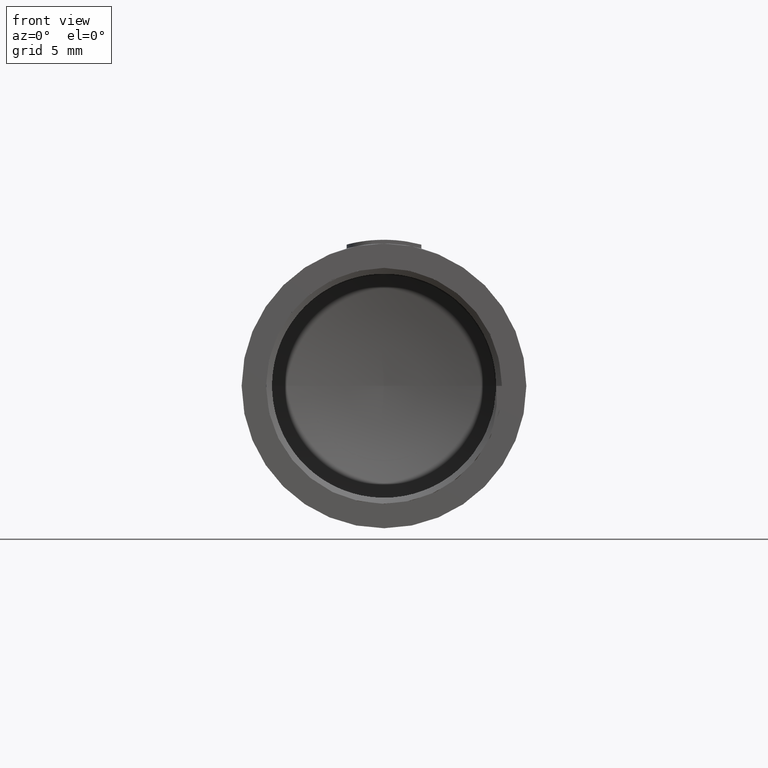
[diagram: clean part render]
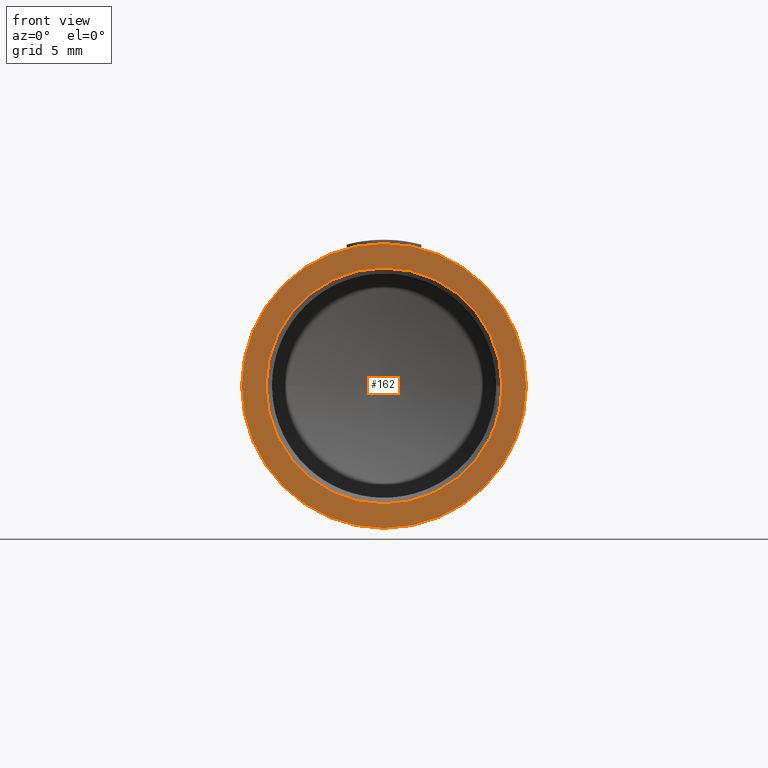
[diagram: same view with one face highlighted and labeled with its STEP entity id]
A machine part, front view. The second image highlights one B-rep face of the part: STEP entity #162.
In plain terms, the highlighted planar face has unit normal (0, 1, 0).
Its self-contained STEP definition (entity closure, byte-faithful):
#162=ADVANCED_FACE('',(#330,#331),#332,.F.);
#330=FACE_BOUND('',#1855,.T.);
#331=FACE_OUTER_BOUND('',#1856,.T.);
#332=PLANE('',#1857);
#1855=EDGE_LOOP('',(#2503,#2504));
#1856=EDGE_LOOP('',(#2505,#2506));
#1857=AXIS2_PLACEMENT_3D('',#2507,#2508,#2509);
#2503=ORIENTED_EDGE('',*,*,#2753,.F.);
#2504=ORIENTED_EDGE('',*,*,#2559,.F.);
#2505=ORIENTED_EDGE('',*,*,#2690,.T.);
#2506=ORIENTED_EDGE('',*,*,#2565,.T.);
#2507=CARTESIAN_POINT('',(-4.65365783675994E-16,-1.7347234759768E-15,-7.6));
#2508=DIRECTION('',(0.0,1.0,0.0));
#2509=DIRECTION('',(-1.0,0.0,6.12323399573677E-17));
#2559=EDGE_CURVE('',#2783,#2780,#2785,.T.);
#2565=EDGE_CURVE('',#2796,#2794,#2797,.T.);
#2690=EDGE_CURVE('',#2794,#2796,#3003,.T.);
#2753=EDGE_CURVE('',#2780,#2783,#3106,.T.);
#2780=VERTEX_POINT('',#3825);
#2783=VERTEX_POINT('',#3829);
#2785=CIRCLE('',#3832,6.3);
#2794=VERTEX_POINT('',#3841);
#2796=VERTEX_POINT('',#3844);
#2797=CIRCLE('',#3845,7.6);
#3003=CIRCLE('',#4113,7.6);
#3106=CIRCLE('',#4263,6.3);
#3825=CARTESIAN_POINT('',(6.3,0.0,-3.85763741731417E-16));
#3829=CARTESIAN_POINT('',(-6.3,0.0,-3.85763741731416E-16));
#3832=AXIS2_PLACEMENT_3D('',#4282,#4283,#4284);
#3841=CARTESIAN_POINT('',(7.6,-3.46944695195361E-15,-4.65365783675995E-16));
#3844=CARTESIAN_POINT('',(-7.6,-3.5527136788005E-15,-4.65365783675994E-16));
#3845=AXIS2_PLACEMENT_3D('',#4298,#4299,#4300);
#4113=AXIS2_PLACEMENT_3D('',#4574,#4575,#4576);
#4263=AXIS2_PLACEMENT_3D('',#4688,#4689,#4690);
#4282=CARTESIAN_POINT('',(0.0,0.0,0.0));
#4283=DIRECTION('',(0.0,-1.0,0.0));
#4284=DIRECTION('',(1.0,0.0,-6.12323399573677E-17));
#4298=CARTESIAN_POINT('',(0.0,-3.46944695195361E-15,0.0));
#4299=DIRECTION('',(0.0,-1.0,0.0));
#4300=DIRECTION('',(1.0,0.0,-6.12323399573677E-17));
#4574=CARTESIAN_POINT('',(0.0,-3.46944695195361E-15,0.0));
#4575=DIRECTION('',(0.0,-1.0,0.0));
#4576=DIRECTION('',(1.0,0.0,-6.12323399573677E-17));
#4688=CARTESIAN_POINT('',(0.0,0.0,0.0));
#4689=DIRECTION('',(0.0,-1.0,0.0));
#4690=DIRECTION('',(1.0,0.0,-6.12323399573677E-17));